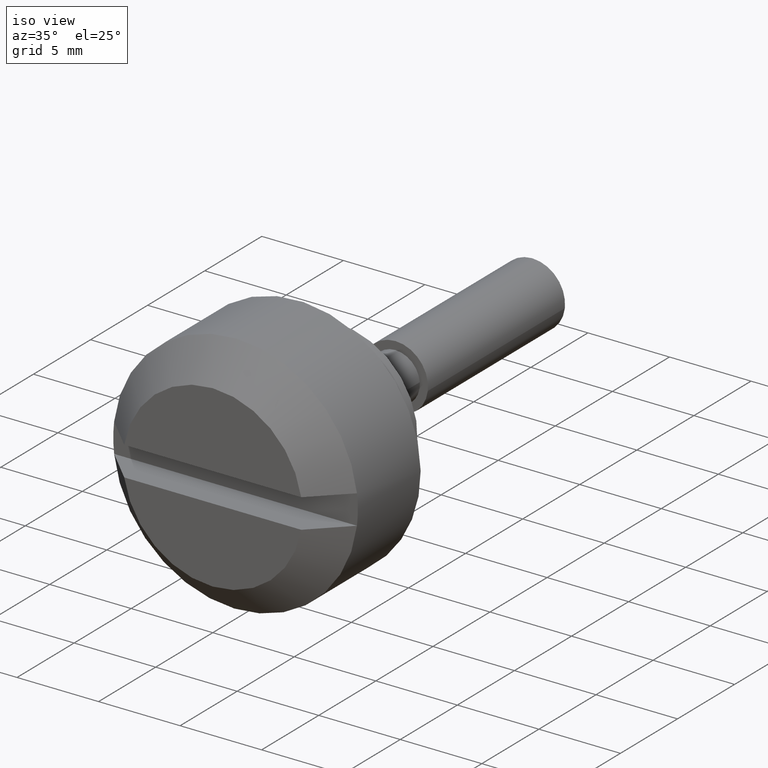
[diagram: clean part render]
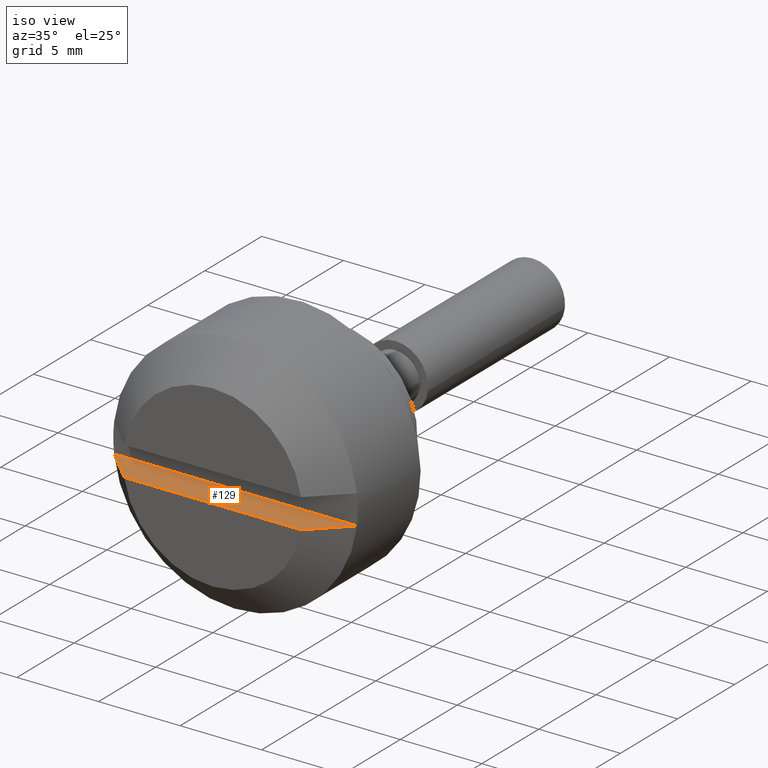
[diagram: same view with one face highlighted and labeled with its STEP entity id]
A machine part, iso view. The second image highlights one B-rep face of the part: STEP entity #129.
In plain terms, the highlighted planar face has unit normal (0, 0, 1).
Its self-contained STEP definition (entity closure, byte-faithful):
#129=ADVANCED_FACE('',(#323),#322,.T.);
#322=PLANE('',#625);
#323=FACE_OUTER_BOUND('',#626,.T.);
#622=CARTESIAN_POINT('',(-1.01999000000E+01,-8.93496502511E+00,-9.00000000000E-01));
#623=DIRECTION('',(0.00000000000E+00,0.00000000000E+00,1.00000000000E+00));
#624=DIRECTION('',(1.00000000000E+00,0.00000000000E+00,0.00000000000E+00));
#625=AXIS2_PLACEMENT_3D('',#622,#623,#624);
#626=EDGE_LOOP('',(#854,#855,#856,#857));
#854=ORIENTED_EDGE('',*,*,#1008,.F.);
#855=ORIENTED_EDGE('',*,*,#1010,.T.);
#856=ORIENTED_EDGE('',*,*,#1011,.T.);
#857=ORIENTED_EDGE('',*,*,#1012,.T.);
#1008=EDGE_CURVE('',#1351,#1358,#1359,.T.);
#1010=EDGE_CURVE('',#1351,#1371,#1372,.T.);
#1011=EDGE_CURVE('',#1371,#1378,#1379,.T.);
#1012=EDGE_CURVE('',#1378,#1358,#1385,.T.);
#1351=VERTEX_POINT('',#1900);
#1358=VERTEX_POINT('',#1905);
#1359=LINE('',#1906,#1907);
#1371=VERTEX_POINT('',#1913);
#1372=(BOUNDED_CURVE() B_SPLINE_CURVE(3,(#1914,#1915,#1916,#1917),.UNSPECIFIED.,.F.,.F.) B_SPLINE_CURVE_WITH_KNOTS((4,4),(1.27287149362E-02,1.55712763781E-02),.UNSPECIFIED.) CURVE() GEOMETRIC_REPRESENTATION_ITEM() RATIONAL_B_SPLINE_CURVE((1.00000000000E+00,1.00000000000E+00,1.00000000000E+00,1.00000000000E+00)) REPRESENTATION_ITEM('') );
#1378=VERTEX_POINT('',#1918);
#1379=LINE('',#1919,#1920);
#1385=(BOUNDED_CURVE() B_SPLINE_CURVE(3,(#1922,#1923,#1924,#1925),.UNSPECIFIED.,.F.,.F.) B_SPLINE_CURVE_WITH_KNOTS((4,4),(2.99411617818E-02,3.27847412295E-02),.UNSPECIFIED.) CURVE() GEOMETRIC_REPRESENTATION_ITEM() RATIONAL_B_SPLINE_CURVE((1.00000000000E+00,1.00000000000E+00,1.00000000000E+00,1.00000000000E+00)) REPRESENTATION_ITEM('') );
#1900=CARTESIAN_POINT('',(-7.99990000000E+00,7.44580418759E+00,-9.00000000000E-01));
#1905=CARTESIAN_POINT('',(-7.99990000000E+00,-7.44580418759E+00,-9.00000000000E-01));
#1906=CARTESIAN_POINT('',(-7.99990000000E+00,7.44580418759E+00,-9.00000000000E-01));
#1907=VECTOR('',#1908,1.48916083752E+01);
#1908=DIRECTION('',(0.00000000000E+00,-1.00000000000E+00,0.00000000000E+00));
#1913=CARTESIAN_POINT('',(-9.99990000000E+00,5.42586398650E+00,-9.00000000000E-01));
#1914=CARTESIAN_POINT('',(-7.99990000000E+00,7.44580418759E+00,-9.00000000000E-01));
#1915=CARTESIAN_POINT('',(-8.66746443278E+00,6.77338075022E+00,-9.00000000000E-01));
#1916=CARTESIAN_POINT('',(-9.33446139654E+00,6.10039477610E+00,-9.00000000000E-01));
#1917=CARTESIAN_POINT('',(-9.99990000000E+00,5.42586398650E+00,-9.00000000000E-01));
#1918=CARTESIAN_POINT('',(-9.99990000000E+00,-5.42586398650E+00,-9.00000000000E-01));
#1919=CARTESIAN_POINT('',(-9.99990000000E+00,5.42586398650E+00,-9.00000000000E-01));
#1920=VECTOR('',#1921,1.08517279730E+01);
#1921=DIRECTION('',(0.00000000000E+00,-1.00000000000E+00,0.00000000000E+00));
#1922=CARTESIAN_POINT('',(-9.99990000000E+00,-5.42586398650E+00,-9.00000000000E-01));
#1923=CARTESIAN_POINT('',(-9.33446199411E+00,-6.10039417036E+00,-9.00000000000E-01));
#1924=CARTESIAN_POINT('',(-8.66746487103E+00,-6.77338030878E+00,-9.00000000000E-01));
#1925=CARTESIAN_POINT('',(-7.99990000000E+00,-7.44580418759E+00,-9.00000000000E-01));